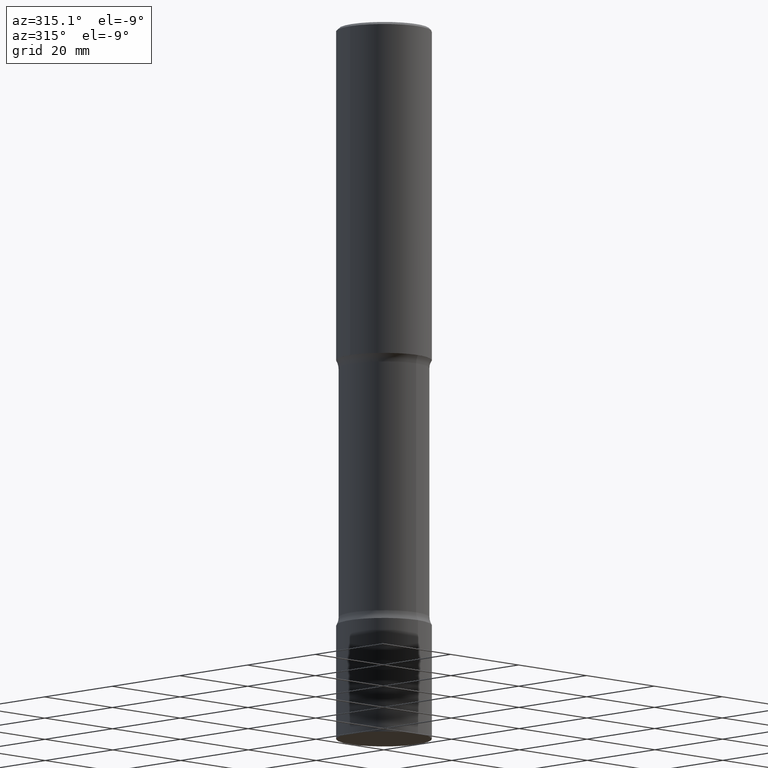
[diagram: clean part render]
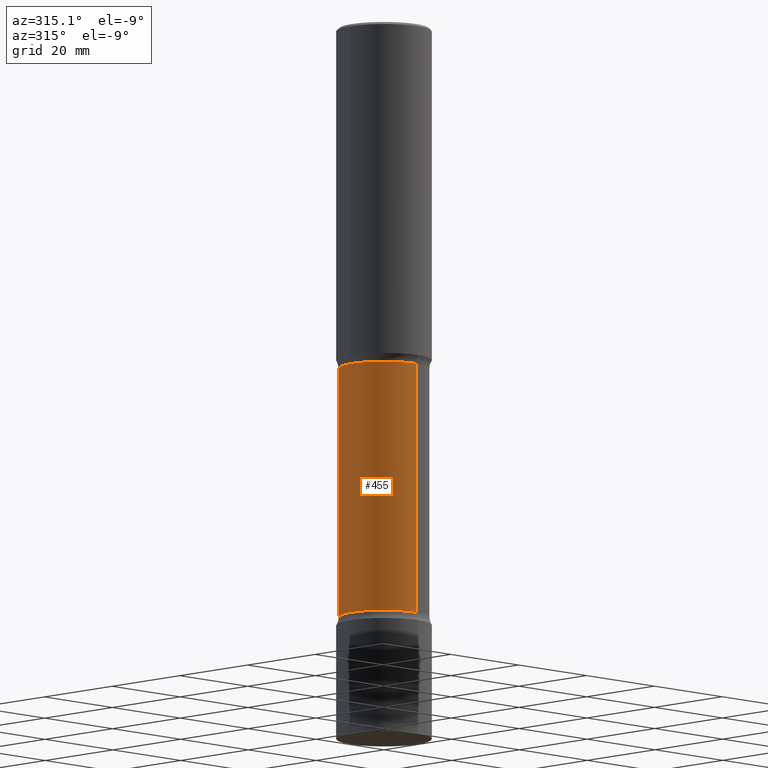
[diagram: same view with one face highlighted and labeled with its STEP entity id]
A machine part, auxiliary view. The second image highlights one B-rep face of the part: STEP entity #455.
In plain terms, the highlighted cylindrical surface (partial cylindrical patch) has radius 9.4996 mm, axis along (0, -0, -1).
Its self-contained STEP definition (entity closure, byte-faithful):
#3 = CARTESIAN_POINT ( 'NONE',  ( -2.565826251166408954E-15, -0.3740000000000208158, -5.905499999999998195 ) ) ;
#12 = CARTESIAN_POINT ( 'NONE',  ( -2.633402156444537006E-15, -0.3740000000000103242, -2.823256588393414201 ) ) ;
#22 = CARTESIAN_POINT ( 'NONE',  ( -2.633402156444483363E-15, -0.3740000000000175961, -4.893243411606583493 ) ) ;
#27 = CARTESIAN_POINT ( 'NONE',  ( 1.196112077380108105E-28, -1.709204794905862240E-14, -4.893243411606584381 ) ) ;
#48 = FACE_OUTER_BOUND ( 'NONE', #483, .T. ) ;
#74 = DIRECTION ( 'NONE',  ( 2.545119396642768446E-29, -3.348776021548438389E-15, -1.000000000000000000 ) ) ;
#84 = AXIS2_PLACEMENT_3D ( 'NONE', #27, #339, #502 ) ;
#116 = CARTESIAN_POINT ( 'NONE',  ( 2.611628041454786670E-15, 0.3739999999999834568, -4.893243411606585269 ) ) ;
#131 = CARTESIAN_POINT ( 'NONE',  ( 2.611628041454731844E-15, 0.3739999999999900071, -2.823256588393416422 ) ) ;
#141 = AXIS2_PLACEMENT_3D ( 'NONE', #263, #74, #424 ) ;
#156 = VERTEX_POINT ( 'NONE', #22 ) ;
#161 = CYLINDRICAL_SURFACE ( 'NONE', #413, 0.3740000000000002767 ) ;
#162 = VERTEX_POINT ( 'NONE', #131 ) ;
#181 = LINE ( 'NONE', #3, #393 ) ;
#194 = DIRECTION ( 'NONE',  ( 2.545119396642768446E-29, -3.348776021548438389E-15, -1.000000000000000000 ) ) ;
#230 = ORIENTED_EDGE ( 'NONE', *, *, #391, .T. ) ;
#233 = EDGE_CURVE ( 'NONE', #156, #399, #311, .T. ) ;
#237 = DIRECTION ( 'NONE',  ( 2.545119396642768446E-29, -3.348776021548438389E-15, -1.000000000000000000 ) ) ;
#240 = CARTESIAN_POINT ( 'NONE',  ( 2.611628041454811125E-15, 0.3739999999999797931, -5.905500000000000860 ) ) ;
#245 = VECTOR ( 'NONE', #237, 39.37007874015748143 ) ;
#263 = CARTESIAN_POINT ( 'NONE',  ( 6.692757159246300993E-29, -1.016012571056113774E-14, -2.823256588393415090 ) ) ;
#273 = EDGE_CURVE ( 'NONE', #462, #156, #181, .T. ) ;
#274 = LINE ( 'NONE', #240, #245 ) ;
#289 = ORIENTED_EDGE ( 'NONE', *, *, #273, .F. ) ;
#304 = CIRCLE ( 'NONE', #141, 0.3740000000000001656 ) ;
#311 = CIRCLE ( 'NONE', #84, 0.3740000000000004987 ) ;
#339 = DIRECTION ( 'NONE',  ( 2.545119396642768446E-29, -3.348776021548438389E-15, -1.000000000000000000 ) ) ;
#391 = EDGE_CURVE ( 'NONE', #462, #162, #304, .T. ) ;
#393 = VECTOR ( 'NONE', #432, 39.37007874015748143 ) ;
#398 = DIRECTION ( 'NONE',  ( 6.982962677686266711E-15, 1.000000000000000000, -2.921762560068728623E-15 ) ) ;
#399 = VERTEX_POINT ( 'NONE', #116 ) ;
#405 = ORIENTED_EDGE ( 'NONE', *, *, #233, .F. ) ;
#413 = AXIS2_PLACEMENT_3D ( 'NONE', #439, #194, #398 ) ;
#417 = EDGE_CURVE ( 'NONE', #162, #399, #274, .T. ) ;
#424 = DIRECTION ( 'NONE',  ( 6.982962677686266711E-15, 1.000000000000000000, -2.921762560068729411E-15 ) ) ;
#432 = DIRECTION ( 'NONE',  ( 2.545119396642768446E-29, -3.348776021548438389E-15, -1.000000000000000000 ) ) ;
#439 = CARTESIAN_POINT ( 'NONE',  ( 1.453743465130059735E-28, -2.048186853992491890E-14, -5.905499999999999972 ) ) ;
#455 = ADVANCED_FACE ( 'NONE', ( #48 ), #161, .T. ) ;
#462 = VERTEX_POINT ( 'NONE', #12 ) ;
#483 = EDGE_LOOP ( 'NONE', ( #289, #230, #490, #405 ) ) ;
#490 = ORIENTED_EDGE ( 'NONE', *, *, #417, .T. ) ;
#502 = DIRECTION ( 'NONE',  ( 6.982962677686266711E-15, 1.000000000000000000, -2.921762560068726650E-15 ) ) ;